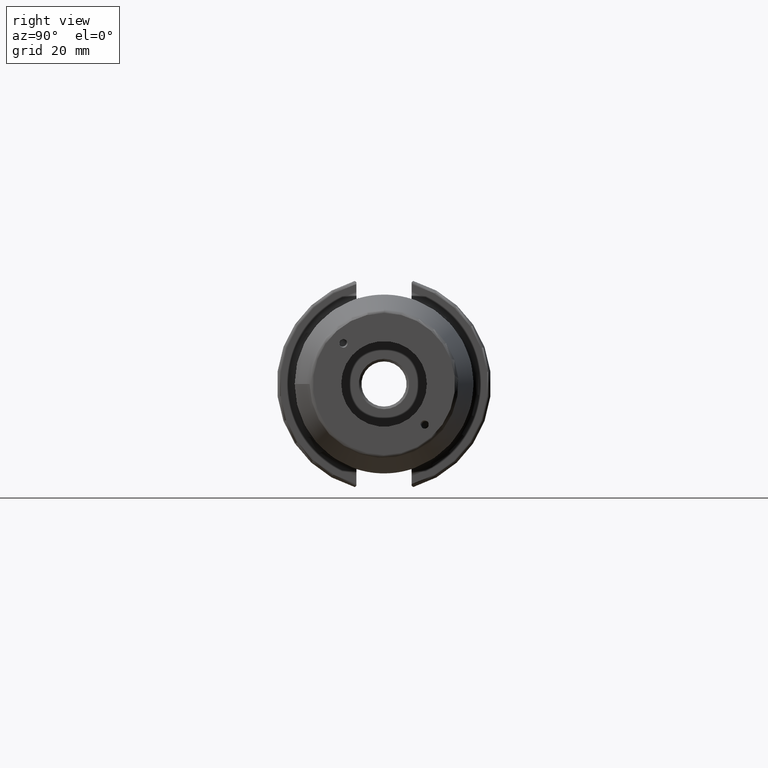
[diagram: clean part render]
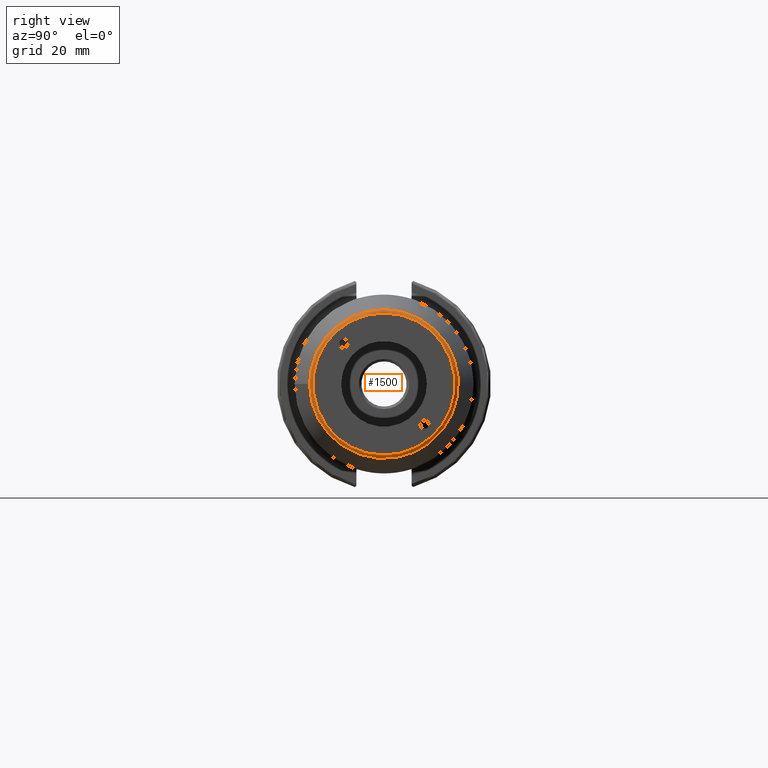
[diagram: same view with one face highlighted and labeled with its STEP entity id]
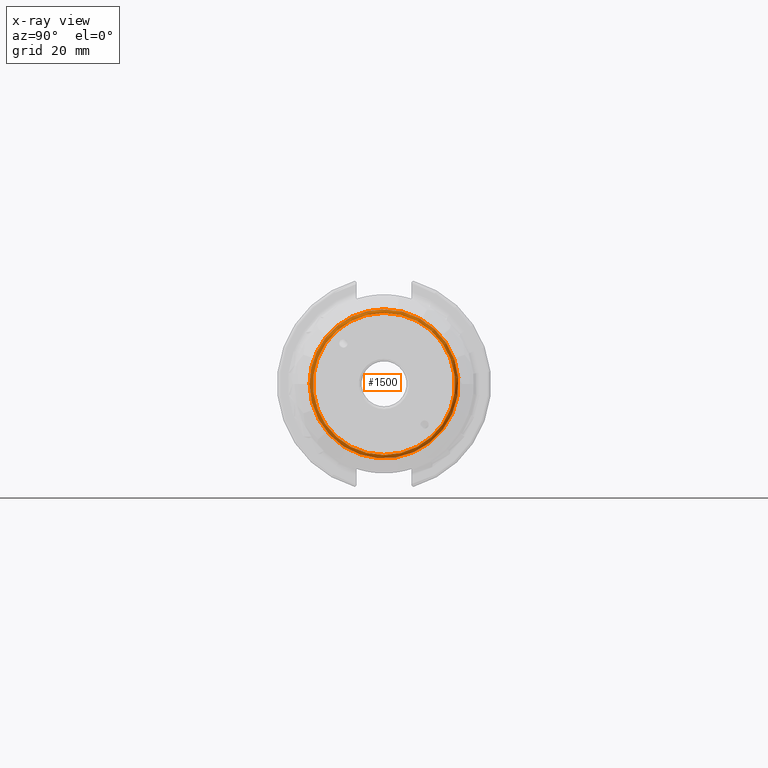
[diagram: x-ray of the same camera — body ghosted, the highlighted face saturated]
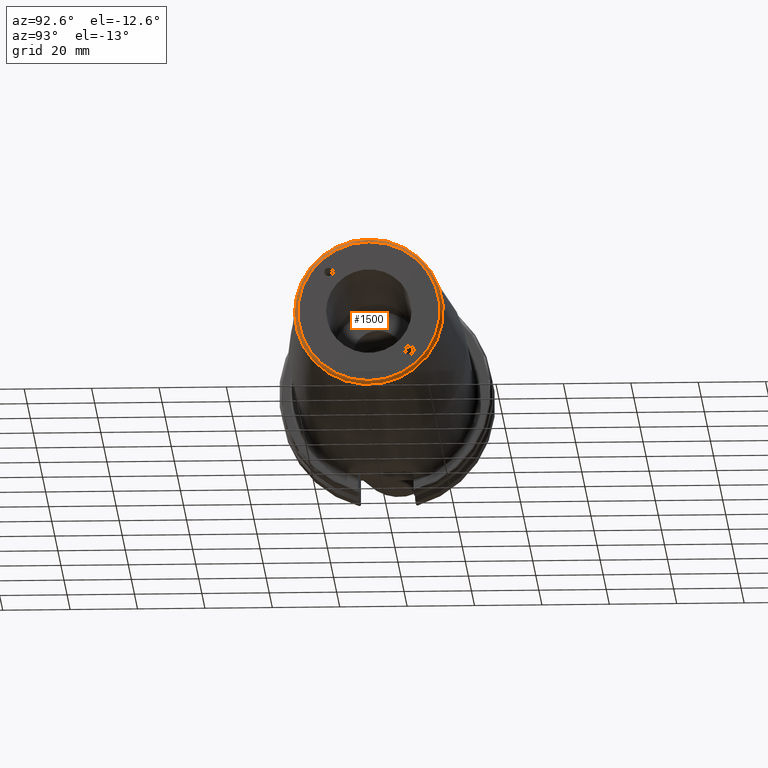
[diagram: same view with one face highlighted and labeled with its STEP entity id]
A machine part, right view. The second image highlights one B-rep face of the part: STEP entity #1500.
The next image is the same camera in x-ray: the body ghosted, the highlighted face saturated — about 0% of this face is hidden behind the body in this view.
A second angle (auxiliary view) of the same face is appended — the face is thin or edge-on in the first view.
In plain terms, the highlighted toroidal blend (fillet) surface has major radius 21.0756 mm and minor (blend) radius 1 mm.
Its self-contained STEP definition (entity closure, byte-faithful):
#117=TOROIDAL_SURFACE('',#1622,21.0756095083418,1.);
#133=FACE_OUTER_BOUND('',#221,.T.);
#221=EDGE_LOOP('',(#1027,#1028,#1029,#1030,#1031));
#327=CIRCLE('',#1623,21.0756095083418);
#328=CIRCLE('',#1624,1.);
#329=CIRCLE('',#1625,22.0725268420749);
#330=CIRCLE('',#1626,22.0725268420749);
#619=VERTEX_POINT('',#2349);
#620=VERTEX_POINT('',#2351);
#621=VERTEX_POINT('',#2353);
#781=EDGE_CURVE('',#619,#619,#327,.T.);
#782=EDGE_CURVE('',#619,#620,#328,.T.);
#783=EDGE_CURVE('',#620,#621,#329,.T.);
#784=EDGE_CURVE('',#621,#620,#330,.T.);
#1027=ORIENTED_EDGE('',*,*,#781,.T.);
#1028=ORIENTED_EDGE('',*,*,#782,.T.);
#1029=ORIENTED_EDGE('',*,*,#783,.T.);
#1030=ORIENTED_EDGE('',*,*,#784,.T.);
#1031=ORIENTED_EDGE('',*,*,#782,.F.);
#1500=ADVANCED_FACE('',(#133),#117,.T.);
#1622=AXIS2_PLACEMENT_3D('',#2348,#1836,#1837);
#1623=AXIS2_PLACEMENT_3D('',#2350,#1838,#1839);
#1624=AXIS2_PLACEMENT_3D('',#2352,#1840,#1841);
#1625=AXIS2_PLACEMENT_3D('',#2354,#1842,#1843);
#1626=AXIS2_PLACEMENT_3D('',#2355,#1844,#1845);
#1836=DIRECTION('center_axis',(1.,0.,0.));
#1837=DIRECTION('ref_axis',(0.,0.,-1.));
#1838=DIRECTION('center_axis',(-1.,0.,0.));
#1839=DIRECTION('ref_axis',(0.,-1.,1.83697019872103E-16));
#1840=DIRECTION('center_axis',(0.,-1.,-1.22464679914735E-16));
#1841=DIRECTION('ref_axis',(0.,-1.22464679914735E-16,1.));
#1842=DIRECTION('center_axis',(1.,0.,0.));
#1843=DIRECTION('ref_axis',(0.,-1.,3.06161699786838E-17));
#1844=DIRECTION('center_axis',(1.,0.,0.));
#1845=DIRECTION('ref_axis',(0.,-1.,3.06161699786838E-17));
#2348=CARTESIAN_POINT('Origin',(129.,0.,0.));
#2349=CARTESIAN_POINT('',(130.,-2.58101777244703E-15,21.0756095083418));
#2350=CARTESIAN_POINT('Origin',(130.,0.,0.));
#2351=CARTESIAN_POINT('',(129.078459095728,-2.70310493462411E-15,22.0725268420749));
#2352=CARTESIAN_POINT('Origin',(129.,-2.58101777244703E-15,21.0756095083418));
#2353=CARTESIAN_POINT('',(129.078459095728,-22.0725268420749,-2.70310493462411E-15));
#2354=CARTESIAN_POINT('Origin',(129.078459095728,0.,-3.37888116828014E-15));
#2355=CARTESIAN_POINT('Origin',(129.078459095728,0.,-3.37888116828014E-15));